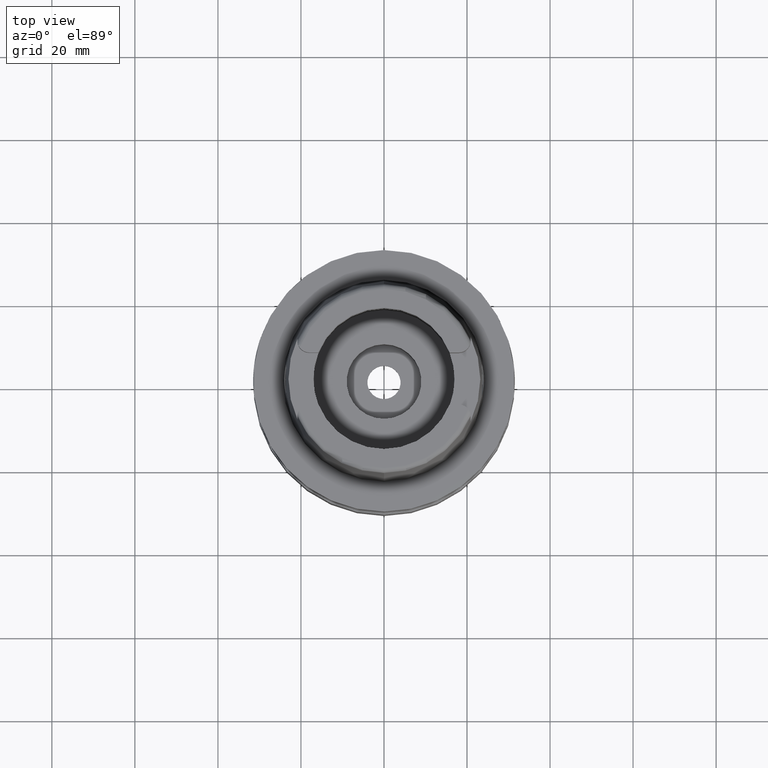
[diagram: clean part render]
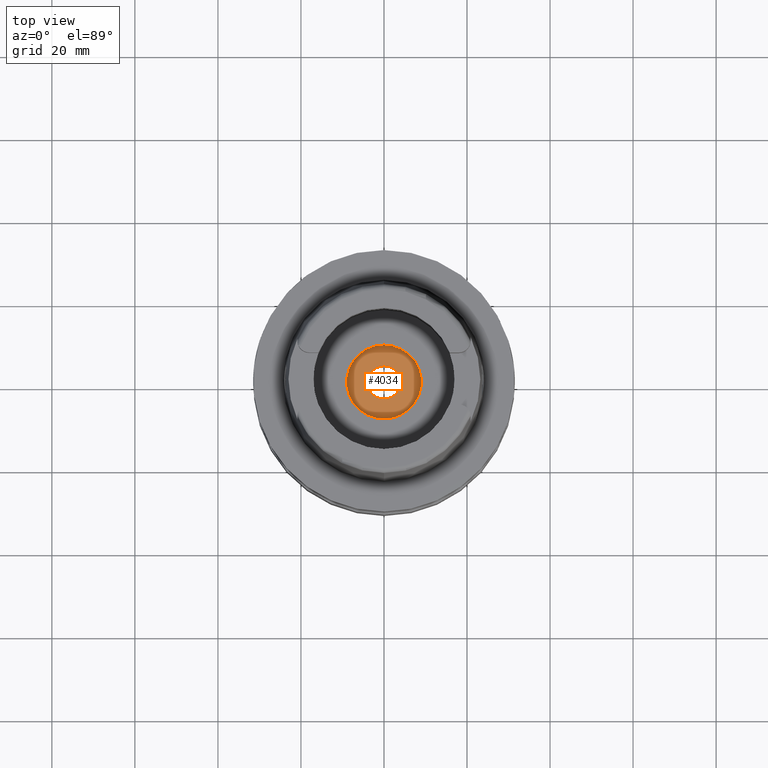
[diagram: same view with one face highlighted and labeled with its STEP entity id]
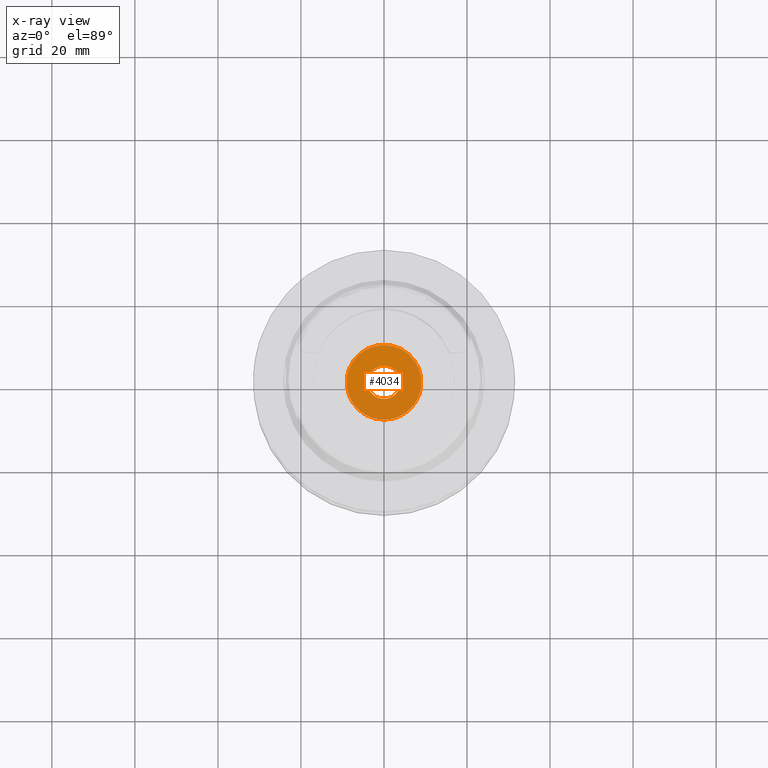
[diagram: x-ray of the same camera — body ghosted, the highlighted face saturated]
A machine part, top view. The second image highlights one B-rep face of the part: STEP entity #4034.
The next image is the same camera in x-ray: the body ghosted, the highlighted face saturated — about 0% of this face is hidden behind the body in this view.
In plain terms, the highlighted planar face has unit normal (0, 0, -1).
Its self-contained STEP definition (entity closure, byte-faithful):
#1930=CARTESIAN_POINT('',(0.E0,1.709606931610E-14,-2.195E1));
#1931=DIRECTION('',(0.E0,0.E0,-1.E0));
#1932=DIRECTION('',(0.E0,-1.E0,0.E0));
#1933=AXIS2_PLACEMENT_3D('',#1930,#1931,#1932);
#1938=CARTESIAN_POINT('',(0.E0,1.709606931610E-14,-2.195E1));
#1939=DIRECTION('',(0.E0,0.E0,-1.E0));
#1940=DIRECTION('',(0.E0,1.E0,0.E0));
#1941=AXIS2_PLACEMENT_3D('',#1938,#1939,#1940);
#1946=CARTESIAN_POINT('',(0.E0,1.709606931610E-14,-2.195E1));
#1947=DIRECTION('',(0.E0,0.E0,1.E0));
#1948=DIRECTION('',(0.E0,-1.E0,0.E0));
#1949=AXIS2_PLACEMENT_3D('',#1946,#1947,#1948);
#1954=CARTESIAN_POINT('',(0.E0,1.709606931610E-14,-2.195E1));
#1955=DIRECTION('',(0.E0,0.E0,1.E0));
#1956=DIRECTION('',(0.E0,1.E0,0.E0));
#1957=AXIS2_PLACEMENT_3D('',#1954,#1955,#1956);
#2527=CARTESIAN_POINT('',(0.E0,4.E0,-2.195E1));
#2528=VERTEX_POINT('',#2527);
#2529=CARTESIAN_POINT('',(0.E0,-4.E0,-2.195E1));
#2530=VERTEX_POINT('',#2529);
#2531=CARTESIAN_POINT('',(0.E0,-9.E0,-2.195E1));
#2532=CARTESIAN_POINT('',(0.E0,9.E0,-2.195E1));
#2533=VERTEX_POINT('',#2531);
#2534=VERTEX_POINT('',#2532);
#4019=CARTESIAN_POINT('',(0.E0,0.E0,-2.195E1));
#4020=DIRECTION('',(0.E0,0.E0,-1.E0));
#4021=DIRECTION('',(0.E0,-1.E0,0.E0));
#4022=AXIS2_PLACEMENT_3D('',#4019,#4020,#4021);
#4023=PLANE('',#4022);
#4025=ORIENTED_EDGE('',*,*,#4024,.T.);
#4027=ORIENTED_EDGE('',*,*,#4026,.T.);
#4028=EDGE_LOOP('',(#4025,#4027));
#4029=FACE_OUTER_BOUND('',#4028,.F.);
#4030=ORIENTED_EDGE('',*,*,#4012,.T.);
#4031=ORIENTED_EDGE('',*,*,#4001,.T.);
#4032=EDGE_LOOP('',(#4030,#4031));
#4033=FACE_BOUND('',#4032,.F.);
#1934=CIRCLE('',#1933,9.E0);
#1942=CIRCLE('',#1941,9.E0);
#1950=CIRCLE('',#1949,4.E0);
#1958=CIRCLE('',#1957,4.E0);
#4001=EDGE_CURVE('',#2528,#2530,#1958,.T.);
#4012=EDGE_CURVE('',#2530,#2528,#1950,.T.);
#4024=EDGE_CURVE('',#2533,#2534,#1934,.T.);
#4026=EDGE_CURVE('',#2534,#2533,#1942,.T.);
#4034=ADVANCED_FACE('',(#4029,#4033),#4023,.F.);